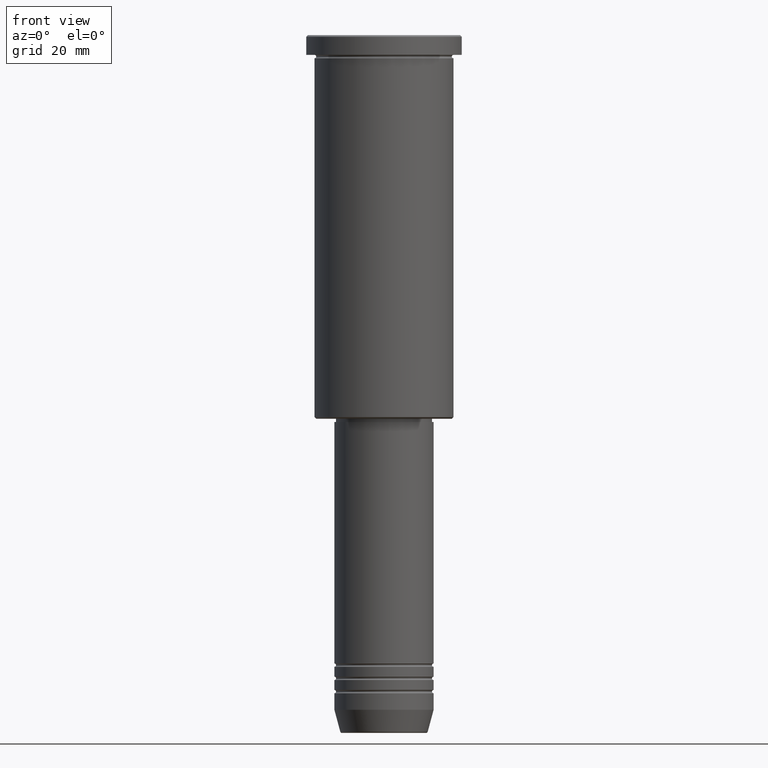
[diagram: clean part render]
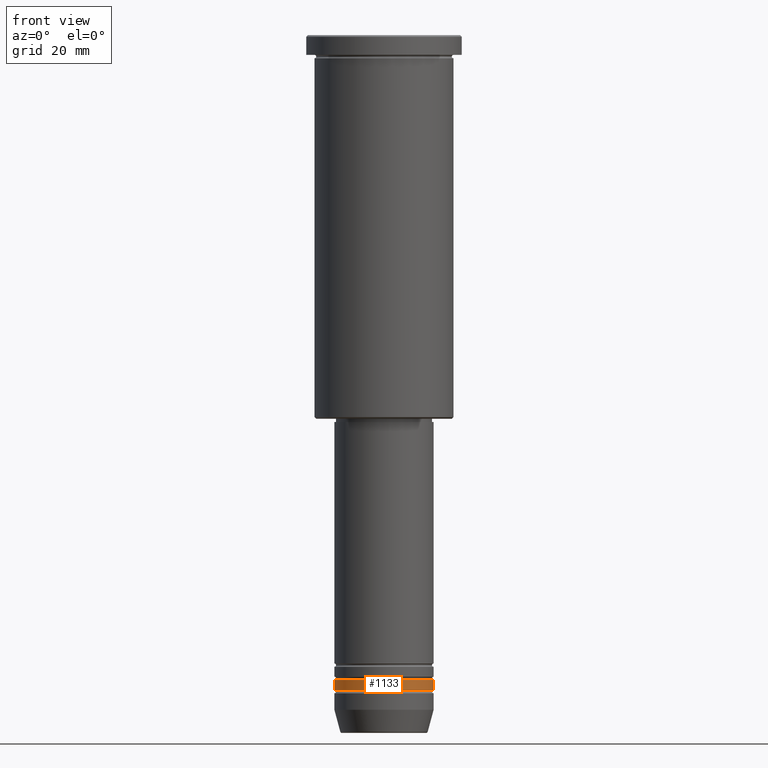
[diagram: same view with one face highlighted and labeled with its STEP entity id]
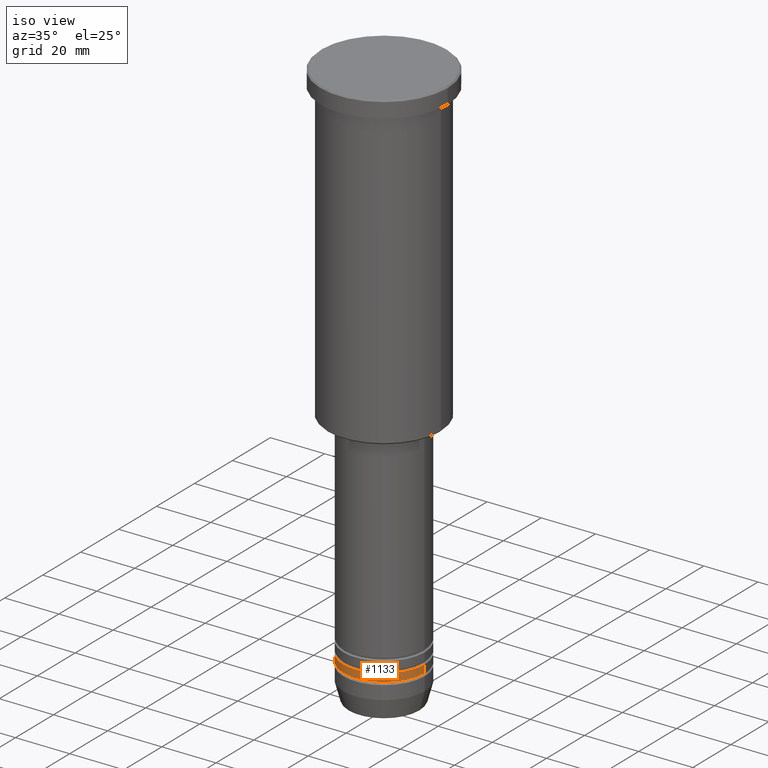
[diagram: same view with one face highlighted and labeled with its STEP entity id]
A machine part, front view. The second image highlights one B-rep face of the part: STEP entity #1133.
A second angle (iso view) of the same face is appended — the face is thin or edge-on in the first view.
In plain terms, the highlighted cylindrical surface (partial cylindrical patch) has radius 15 mm, axis along (-0, -0, 1).
Its self-contained STEP definition (entity closure, byte-faithful):
#21 = CIRCLE ( 'NONE', #248, 15.00000000000000000 ) ;
#32 = ORIENTED_EDGE ( 'NONE', *, *, #201, .T. ) ;
#48 = CARTESIAN_POINT ( 'NONE',  ( 15.00000000000000000, 0.000000000000000000, -197.9999999999998863 ) ) ;
#91 = DIRECTION ( 'NONE',  ( -0.000000000000000000, -0.000000000000000000, 1.000000000000000000 ) ) ;
#92 = AXIS2_PLACEMENT_3D ( 'NONE', #731, #933, #1087 ) ;
#110 = CARTESIAN_POINT ( 'NONE',  ( -15.00000000000000000, 1.836970198721029589E-15, 0.000000000000000000 ) ) ;
#145 = VERTEX_POINT ( 'NONE', #256 ) ;
#177 = CYLINDRICAL_SURFACE ( 'NONE', #92, 15.00000000000000000 ) ;
#194 = LINE ( 'NONE', #110, #863 ) ;
#201 = EDGE_CURVE ( 'NONE', #866, #763, #444, .T. ) ;
#214 = ORIENTED_EDGE ( 'NONE', *, *, #1099, .T. ) ;
#231 = EDGE_CURVE ( 'NONE', #145, #763, #840, .T. ) ;
#238 = EDGE_LOOP ( 'NONE', ( #1015, #214, #32, #539 ) ) ;
#242 = AXIS2_PLACEMENT_3D ( 'NONE', #269, #91, #360 ) ;
#248 = AXIS2_PLACEMENT_3D ( 'NONE', #811, #714, #255 ) ;
#255 = DIRECTION ( 'NONE',  ( 1.000000000000000000, 0.000000000000000000, 0.000000000000000000 ) ) ;
#256 = CARTESIAN_POINT ( 'NONE',  ( -15.00000000000000000, 1.836970198721029589E-15, -194.9999999999999147 ) ) ;
#269 = CARTESIAN_POINT ( 'NONE',  ( 0.000000000000000000, 0.000000000000000000, -194.9999999999999147 ) ) ;
#294 = CARTESIAN_POINT ( 'NONE',  ( -15.00000000000000000, 1.836970198721029589E-15, -197.9999999999998863 ) ) ;
#360 = DIRECTION ( 'NONE',  ( 1.000000000000000000, 0.000000000000000000, 0.000000000000000000 ) ) ;
#444 = LINE ( 'NONE', #1082, #603 ) ;
#539 = ORIENTED_EDGE ( 'NONE', *, *, #231, .F. ) ;
#603 = VECTOR ( 'NONE', #916, 1000.000000000000000 ) ;
#698 = CARTESIAN_POINT ( 'NONE',  ( 15.00000000000000000, 0.000000000000000000, -194.9999999999999147 ) ) ;
#714 = DIRECTION ( 'NONE',  ( -0.000000000000000000, -0.000000000000000000, 1.000000000000000000 ) ) ;
#731 = CARTESIAN_POINT ( 'NONE',  ( 0.000000000000000000, 0.000000000000000000, 0.000000000000000000 ) ) ;
#763 = VERTEX_POINT ( 'NONE', #698 ) ;
#811 = CARTESIAN_POINT ( 'NONE',  ( 0.000000000000000000, 0.000000000000000000, -197.9999999999998863 ) ) ;
#840 = CIRCLE ( 'NONE', #242, 15.00000000000000000 ) ;
#863 = VECTOR ( 'NONE', #1002, 1000.000000000000000 ) ;
#866 = VERTEX_POINT ( 'NONE', #48 ) ;
#905 = EDGE_CURVE ( 'NONE', #947, #145, #194, .T. ) ;
#916 = DIRECTION ( 'NONE',  ( -0.000000000000000000, -0.000000000000000000, 1.000000000000000000 ) ) ;
#933 = DIRECTION ( 'NONE',  ( -0.000000000000000000, -0.000000000000000000, 1.000000000000000000 ) ) ;
#947 = VERTEX_POINT ( 'NONE', #294 ) ;
#1002 = DIRECTION ( 'NONE',  ( -0.000000000000000000, -0.000000000000000000, 1.000000000000000000 ) ) ;
#1015 = ORIENTED_EDGE ( 'NONE', *, *, #905, .F. ) ;
#1082 = CARTESIAN_POINT ( 'NONE',  ( 15.00000000000000000, 0.000000000000000000, 0.000000000000000000 ) ) ;
#1087 = DIRECTION ( 'NONE',  ( 1.000000000000000000, 0.000000000000000000, 0.000000000000000000 ) ) ;
#1099 = EDGE_CURVE ( 'NONE', #947, #866, #21, .T. ) ;
#1113 = FACE_OUTER_BOUND ( 'NONE', #238, .T. ) ;
#1133 = ADVANCED_FACE ( 'NONE', ( #1113 ), #177, .T. ) ;